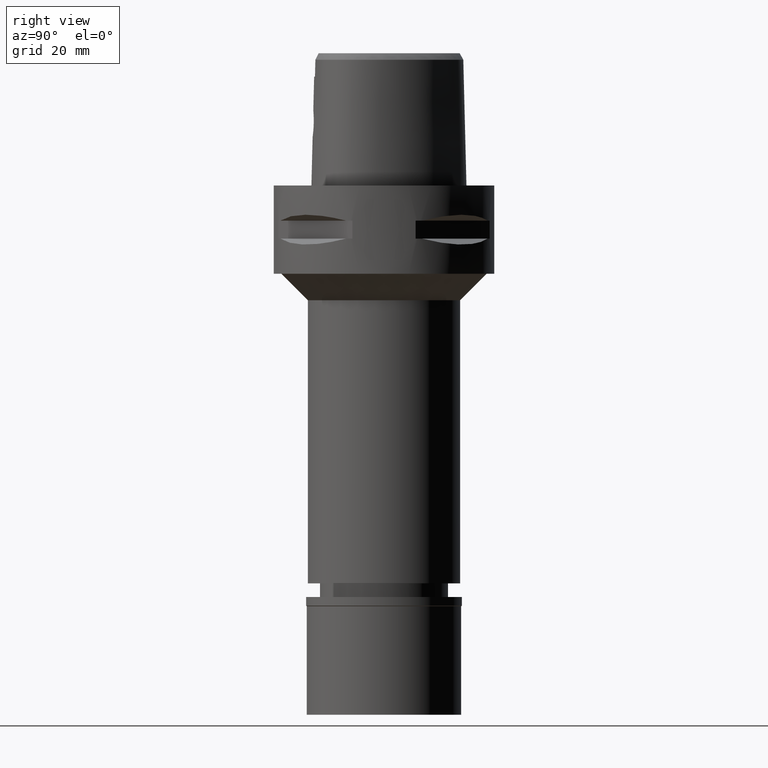
[diagram: clean part render]
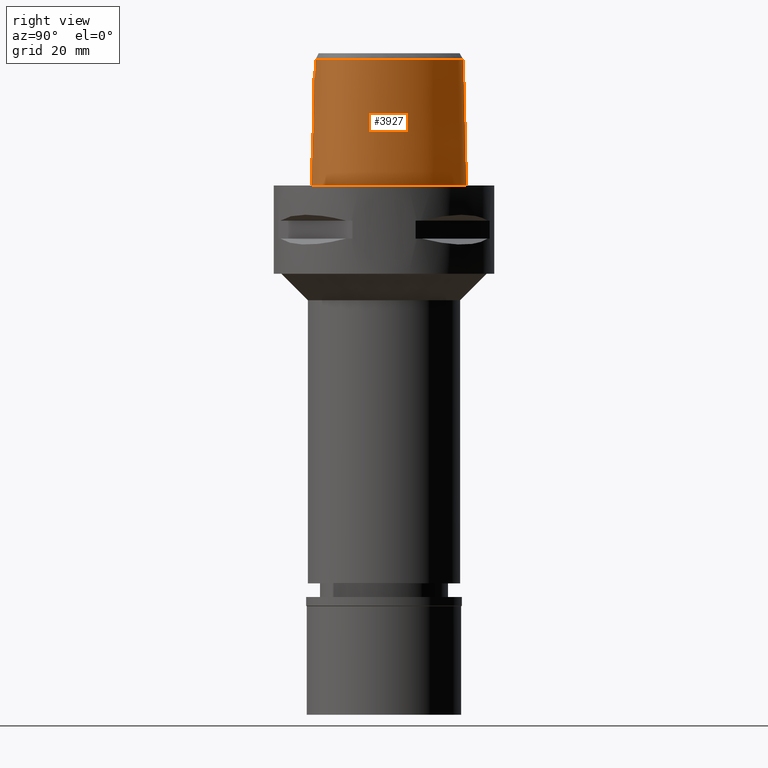
[diagram: same view with one face highlighted and labeled with its STEP entity id]
A machine part, right view. The second image highlights one B-rep face of the part: STEP entity #3927.
In plain terms, the highlighted face is a freeform B-spline surface patch.
Its self-contained STEP definition (entity closure, byte-faithful):
#18 = CARTESIAN_POINT ( 'NONE',  ( -0.7074880756459999143, -15.72098129769000252, 29.09114224101000090 ) ) ;
#42 = CARTESIAN_POINT ( 'NONE',  ( 14.43869636284999913, -10.95090983641999927, 19.20395664275999792 ) ) ;
#46 = CARTESIAN_POINT ( 'NONE',  ( 1.616099766049515107, -15.99381337938741687, 16.58846643699799372 ) ) ;
#68 = CARTESIAN_POINT ( 'NONE',  ( -1.060560766305000069, -15.70738106649000088, 29.09114224101000090 ) ) ;
#114 = CARTESIAN_POINT ( 'NONE',  ( 8.697311596821000634, -14.35163132027000010, 29.09114224101000090 ) ) ;
#140 = CARTESIAN_POINT ( 'NONE',  ( 0.4511781848393000005, 17.98656562787999746, 29.09114224101000090 ) ) ;
#165 = CARTESIAN_POINT ( 'NONE',  ( 16.77753632395000238, -0.3562822714384000222, 29.09114224101000090 ) ) ;
#186 = CARTESIAN_POINT ( 'NONE',  ( 17.49754712307382931, -0.2285937499999897982, 2.976406014015831047E-13 ) ) ;
#188 = CARTESIAN_POINT ( 'NONE',  ( 13.96223233991999990, 8.061115454384999879, 19.20395664275999792 ) ) ;
#193 = EDGE_CURVE ( 'NONE', #4291, #1532, #2701, .T. ) ;
#198 = CARTESIAN_POINT ( 'NONE',  ( 2.030224829794000080E-07, -15.83752876601000281, 24.70000006102999990 ) ) ;
#213 = CARTESIAN_POINT ( 'NONE',  ( 17.57791639359999891, -5.458025465394999998, -0.5704145537452999237 ) ) ;
#222 = CARTESIAN_POINT ( 'NONE',  ( 2.130834279645533513, -16.07853149005606852, 11.81777582520600767 ) ) ;
#227 = CARTESIAN_POINT ( 'NONE',  ( 3.235096591086000117, -15.64751801257999908, 24.70000006080999810 ) ) ;
#235 = CARTESIAN_POINT ( 'NONE',  ( 17.26695542924000293, -0.2694874594802000312, 9.316771044506999999 ) ) ;
#240 = CARTESIAN_POINT ( 'NONE',  ( 2.806282367902104724, -15.99380854387472795, 12.80500890572250761 ) ) ;
#252 = CARTESIAN_POINT ( 'NONE',  ( 16.20602471963941582, -9.356552734375247482, 2.976406014015831047E-13 ) ) ;
#264 = CARTESIAN_POINT ( 'NONE',  ( 2.775961287962938062, -15.99857004330711163, 12.73620107527709067 ) ) ;
#266 = CARTESIAN_POINT ( 'NONE',  ( 14.26907046692650383, -10.79012245165822392, 28.52071728562183495 ) ) ;
#285 = EDGE_CURVE ( 'NONE', #2621, #373, #2567, .T. ) ;
#295 = CARTESIAN_POINT ( 'NONE',  ( 2.975249651912823090, -15.92914271478721311, 14.67846616982686747 ) ) ;
#316 = CARTESIAN_POINT ( 'NONE',  ( 1.158353828547291409, -16.15167258786864934, 11.17852165137630926 ) ) ;
#362 = CARTESIAN_POINT ( 'NONE',  ( 1.262794661676007069, -16.00712763199255662, 16.77676499123156972 ) ) ;
#373 = VERTEX_POINT ( 'NONE', #2668 ) ;
#386 = CARTESIAN_POINT ( 'NONE',  ( 1.898958778535287273, -15.98067541706731731, 16.38724889510308103 ) ) ;
#406 = CARTESIAN_POINT ( 'NONE',  ( 13.05575617540000088, -11.90823727885000061, 29.09114224101000090 ) ) ;
#426 = CARTESIAN_POINT ( 'NONE',  ( 15.66039569071000059, -10.22138777218999905, -0.5704145537452999237 ) ) ;
#468 = CARTESIAN_POINT ( 'NONE',  ( -0.7138086240093000079, -15.96808641723999855, 19.20395664275999792 ) ) ;
#470 = CARTESIAN_POINT ( 'NONE',  ( 5.051093167571859333, -16.15562499999758828, 2.976406014015831552E-13 ) ) ;
#489 = CARTESIAN_POINT ( 'NONE',  ( 11.47659488228999969, 12.46143684616999892, -0.5704145537452999237 ) ) ;
#490 = CARTESIAN_POINT ( 'NONE',  ( 2.196663950529426312, -15.96564993910013364, 16.11602529263611316 ) ) ;
#516 = CARTESIAN_POINT ( 'NONE',  ( 4.735056263091999895, 17.74784407602999892, -0.5704145537452999237 ) ) ;
#534 = CARTESIAN_POINT ( 'NONE',  ( -1.980591514487999971E-12, -16.18126839358999902, 10.94999999999999929 ) ) ;
#536 = CARTESIAN_POINT ( 'NONE',  ( -0.5293535204074000244, 17.95181588734000044, 29.09114224101000090 ) ) ;
#551 = CARTESIAN_POINT ( 'NONE',  ( 0.6801907859383073962, 18.69499999999166207, 2.976406014015831047E-13 ) ) ;
#552 = CARTESIAN_POINT ( 'NONE',  ( 7.514850770969000671, 15.25369635418000058, 29.09114224101000090 ) ) ;
#560 = CARTESIAN_POINT ( 'NONE',  ( 2.957688824804170835, -15.96752846870872666, 13.22897551199208621 ) ) ;
#578 = CARTESIAN_POINT ( 'NONE',  ( 16.29641061717000028, 3.623925473446000023, 9.316771044506999999 ) ) ;
#606 = CARTESIAN_POINT ( 'NONE',  ( 16.66912842139923612, -8.445800781249845457, 2.976406014015831047E-13 ) ) ;
#614 = CARTESIAN_POINT ( 'NONE',  ( 1.805376232587398988, -16.10834772480010813, 11.53923680359978476 ) ) ;
#615 = CARTESIAN_POINT ( 'NONE',  ( 3.738627708319180787, -15.49270856215351877, 28.52071728562183495 ) ) ;
#626 = CARTESIAN_POINT ( 'NONE',  ( 11.68694516583923004, -13.70394531249594472, 2.976406014015831047E-13 ) ) ;
#641 = CARTESIAN_POINT ( 'NONE',  ( 2.520317714005605669, -15.94834054842959503, 15.72060082174885132 ) ) ;
#673 = ORIENTED_EDGE ( 'NONE', *, *, #4722, .F. ) ;
#688 = CARTESIAN_POINT ( 'NONE',  ( 2.180887052763814449, -15.96648089881372279, 16.13220278528723028 ) ) ;
#710 = CARTESIAN_POINT ( 'NONE',  ( 16.01658383235691474, -8.155509186611954675, 28.52071728562183495 ) ) ;
#732 = CARTESIAN_POINT ( 'NONE',  ( 1.859549321997236992, -15.98255794229956273, 16.41807320997656205 ) ) ;
#756 = LINE ( 'NONE', #2994, #4116 ) ;
#799 = CARTESIAN_POINT ( 'NONE',  ( 14.61870771869000052, -11.12154153728999972, 9.316771044506999999 ) ) ;
#846 = CARTESIAN_POINT ( 'NONE',  ( 14.39249254908999909, 8.309508946899001103, -0.5704145537452999237 ) ) ;
#847 = CARTESIAN_POINT ( 'NONE',  ( 2.088968113521980197, -15.97131126311716542, 16.22457167555463542 ) ) ;
#870 = CARTESIAN_POINT ( 'NONE',  ( 16.53021708233000098, 3.708305583258000304, -0.5704145537452999237 ) ) ;
#898 = CARTESIAN_POINT ( 'NONE',  ( -0.5443412263036000454, 18.19851716980000234, 19.20395664275999792 ) ) ;
#921 = CARTESIAN_POINT ( 'NONE',  ( 14.78833380400076791, -11.28232910156190805, 2.976406014015831047E-13 ) ) ;
#923 = CARTESIAN_POINT ( 'NONE',  ( 16.00353269782999988, -8.149703246730998885, 29.09114224101000090 ) ) ;
#945 = CARTESIAN_POINT ( 'NONE',  ( 2.040572357695998207, 18.55015624999122537, 2.976406014015831047E-13 ) ) ;
#946 = CARTESIAN_POINT ( 'NONE',  ( 1.941729224352999994, 18.07741846689000198, 19.20395664275999792 ) ) ;
#955 = CARTESIAN_POINT ( 'NONE',  ( 2.044225401073505033, -16.08701963945086533, 11.73626748625702554 ) ) ;
#981 = CARTESIAN_POINT ( 'NONE',  ( 6.766065355937999521E-11, 18.69499999997999851, 1.597610932435999867E-13 ) ) ;
#985 = CARTESIAN_POINT ( 'NONE',  ( 2.899217746531572271, -15.97873758491097718, 13.02871175161756589 ) ) ;
#988 = CARTESIAN_POINT ( 'NONE',  ( 10.91764517732974760, 11.98972036053649326, 28.52071728562183495 ) ) ;
#1011 = CARTESIAN_POINT ( 'NONE',  ( 2.824468722466922266, -15.93300016794371743, 15.15105085638172611 ) ) ;
#1026 = CARTESIAN_POINT ( 'NONE',  ( 0.0000000000000000000, -16.02877864023999877, 17.05000000000000071 ) ) ;
#1033 = CARTESIAN_POINT ( 'NONE',  ( 2.076784380858856416, -16.08390063340872800, 11.76594178764125331 ) ) ;
#1040 = B_SPLINE_CURVE_WITH_KNOTS ( 'NONE', 3,
 ( #2812, #3300, #2919, #1026 ),
 .UNSPECIFIED., .F., .F.,
 ( 4, 4 ),
 ( 0.0000000000000000000, 1.000000000000000000 ),
 .UNSPECIFIED. ) ;
#1046 = EDGE_CURVE ( 'NONE', #2384, #4681, #1040, .T. ) ;
#1105 = CARTESIAN_POINT ( 'NONE',  ( 2.164021906619612245, -15.96736812113674553, 16.14931344321803053 ) ) ;
#1129 = CARTESIAN_POINT ( 'NONE',  ( 13.36241666544999873, -12.29868536626999997, 9.316771044506999999 ) ) ;
#1155 = CARTESIAN_POINT ( 'NONE',  ( 15.46013592276000104, -10.07579659592999910, 9.316771044506999999 ) ) ;
#1161 = CARTESIAN_POINT ( 'NONE',  ( 2.262444582314412145, -15.96216938760132109, 16.04565077979858501 ) ) ;
#1182 = CARTESIAN_POINT ( 'NONE',  ( 11.32630903919999987, -13.06981832988000036, 29.09114224101000090 ) ) ;
#1206 = CARTESIAN_POINT ( 'NONE',  ( -1.079551363802000008, -16.20136649919999883, 9.316771044506999999 ) ) ;
#1248 = CARTESIAN_POINT ( 'NONE',  ( -0.3730031670128999832, 18.45651550164999932, 9.316771044506999999 ) ) ;
#1267 = CARTESIAN_POINT ( 'NONE',  ( -0.5593289321996999242, 18.44521845224999623, 9.316771044506999999 ) ) ;
#1284 = CARTESIAN_POINT ( 'NONE',  ( 11.46563508023480082, 12.45218750000693042, 2.976406014015831047E-13 ) ) ;
#1286 = CARTESIAN_POINT ( 'NONE',  ( 15.82879768682999710, 3.455165253819999727, 29.09114224101000090 ) ) ;
#1312 = CARTESIAN_POINT ( 'NONE',  ( 11.28662497999999914, 12.30111484600999994, 9.316771044506999999 ) ) ;
#1318 = CARTESIAN_POINT ( 'NONE',  ( 3.050149896193000920, -15.93316336324772386, 14.18941404704232490 ) ) ;
#1334 = CARTESIAN_POINT ( 'NONE',  ( 1.890839690368999904, 17.83402871717000338, 29.09114224101000090 ) ) ;
#1345 = CARTESIAN_POINT ( 'NONE',  ( 15.07117004567137108, -9.793013887526525352, 28.52071728562183495 ) ) ;
#1374 = CARTESIAN_POINT ( 'NONE',  ( 2.836520581861567081, -15.93251973351802242, 15.12113420123080942 ) ) ;
#1380 = CARTESIAN_POINT ( 'NONE',  ( 2.169052010910823558, -15.77399788591334051, 24.70000016056455294 ) ) ;
#1401 = CARTESIAN_POINT ( 'NONE',  ( 0.6770584128771647281, -16.17132556088388640, 11.02443681068310255 ) ) ;
#1423 = CARTESIAN_POINT ( 'NONE',  ( 1.306758668661504474, -16.14399373876849353, 11.23972581488373912 ) ) ;
#1429 = ORIENTED_EDGE ( 'NONE', *, *, #285, .T. ) ;
#1455 = VERTEX_POINT ( 'NONE', #4601 ) ;
#1502 = CARTESIAN_POINT ( 'NONE',  ( 2.459696765391574669, -15.95161770387217359, 15.80683248070965163 ) ) ;
#1532 = VERTEX_POINT ( 'NONE', #981 ) ;
#1576 = CARTESIAN_POINT ( 'NONE',  ( 16.21839714480000083, -9.363695957393000313, -0.5704145537452999237 ) ) ;
#1585 = CARTESIAN_POINT ( 'NONE',  ( 3.168920890822999770, -15.55911073834000113, 28.52071374672999582 ) ) ;
#1601 = CARTESIAN_POINT ( 'NONE',  ( 11.69401646243999870, -13.71637917490000014, -0.5704145537452999237 ) ) ;
#1626 = CARTESIAN_POINT ( 'NONE',  ( 17.22987942513000093, -3.272349402643000005, 19.20395664275999792 ) ) ;
#1628 = CARTESIAN_POINT ( 'NONE',  ( 2.356615372638850570, -15.95714923954085585, 15.93698914121854671 ) ) ;
#1645 = CARTESIAN_POINT ( 'NONE',  ( 0.4897519511870999653, 18.72964555253000185, -0.5704145537452999237 ) ) ;
#1666 = CARTESIAN_POINT ( 'NONE',  ( 0.4640361069551999784, 18.23425893609999804, 19.20395664275999792 ) ) ;
#1675 = CARTESIAN_POINT ( 'NONE',  ( 3.235096591086000117, -15.64751801257999908, 24.70000006080999810 ) ) ;
#1693 = CARTESIAN_POINT ( 'NONE',  ( 16.94089135336999874, -7.099401475686000218, 9.316771044506999999 ) ) ;
#1704 = CARTESIAN_POINT ( 'NONE',  ( 1.719191830015897482, -16.11523926597523371, 11.47872671523163746 ) ) ;
#1719 = CARTESIAN_POINT ( 'NONE',  ( 7.668807780442000066, 15.44980323052999971, 19.20395664275999792 ) ) ;
#1726 = CARTESIAN_POINT ( 'NONE',  ( 1.078575942914882235, -16.15565394761469520, 11.14687127074763495 ) ) ;
#1730 = LINE ( 'NONE', #4408, #3338 ) ;
#1737 = CARTESIAN_POINT ( 'NONE',  ( 17.71143735561479104, -3.269218750000424389, 2.976406014015831047E-13 ) ) ;
#1749 = CARTESIAN_POINT ( 'NONE',  ( 3.027798455715707604, -15.95003164277662755, 13.62032956274717321 ) ) ;
#1754 = CARTESIAN_POINT ( 'NONE',  ( -3.151827129214000572E-11, 17.98202997909999823, 28.52071728569000086 ) ) ;
#1773 = CARTESIAN_POINT ( 'NONE',  ( 2.821425036078518467, -15.93312409536605578, 15.15848376097718031 ) ) ;
#1853 = CARTESIAN_POINT ( 'NONE',  ( 15.84228676733109076, 3.460033425849080135, 28.52071728562183495 ) ) ;
#1870 = CARTESIAN_POINT ( 'NONE',  ( 1.286803370084999898, -15.75925600328000087, 29.09114224101000090 ) ) ;
#1875 = B_SPLINE_CURVE_WITH_KNOTS ( 'NONE', 3,
 ( #2114, #4331, #4354, #1401, #4698, #3674, #4793, #1726, #3601, #4047, #2164, #316, #1423, #3204, #1704, #614, #2927, #2432, #955, #1033, #2457, #222, #3624, #2532, #4399, #2899, #3306, #3944, #3969, #3999, #3284, #2092, #264, #2064, #240, #985, #560, #4775, #1749, #3254, #3651, #3575, #4745, #1318, #2840, #295, #3227, #2139, #4719, #2485, #1374, #4378, #1011, #1773, #2508, #4022, #641, #1502, #1628, #2256, #1161, #4820, #490, #688, #3696, #1105, #847, #2207, #386, #732, #2973, #4840, #46, #3329, #2353, #3497, #362, #3719, #2664, #3864, #1989 ),
 .UNSPECIFIED., .F., .F.,
 ( 4, 2, 2, 1, 1, 1, 2, 2, 2, 2, 2, 1, 1, 2, 2, 2, 2, 2, 1, 2, 2, 2, 2, 2, 2, 2, 2, 1, 1, 1, 2, 2, 2, 2, 2, 1, 1, 2, 2, 2, 2, 2, 2, 2, 2, 4 ),
 ( 0.0000000000000000000, 0.06250000000000194289, 0.09375000000000292821, 0.1093750000000034278, 0.1171875000000035943, 0.1210937500000035666, 0.1230468750000035943, 0.1250000000000036082, 0.1874999999999998612, 0.2187499999999979738, 0.2343749999999970024, 0.2421874999999965306, 0.2460937499999961142, 0.2480468749999960587, 0.2499999999999960032, 0.2812499999999952816, 0.3124999999999946154, 0.3437499999999938938, 0.3593749999999935607, 0.3671874999999931721, 0.3749999999999927280, 0.4374999999999883982, 0.4687499999999862332, 0.4843749999999854561, 0.4999999999999846789, 0.5624999999999807931, 0.5937499999999786837, 0.6093749999999779066, 0.6171874999999776845, 0.6210937499999773515, 0.6230468749999771294, 0.6249999999999770184, 0.6874999999999783507, 0.7187499999999789058, 0.7343749999999792388, 0.7421874999999797939, 0.7460937499999801270, 0.7480468749999799050, 0.7499999999999797939, 0.7812499999999830136, 0.7968749999999842348, 0.8124999999999854561, 0.8437499999999878986, 0.8593749999999890088, 0.8749999999999900080, 1.000000000000000000 ),
 .UNSPECIFIED. ) ;
#1899 = ORIENTED_EDGE ( 'NONE', *, *, #1046, .T. ) ;
#1942 = CARTESIAN_POINT ( 'NONE',  ( 15.05961638684000015, -9.784614243422000257, 29.09114224101000090 ) ) ;
#1948 = ORIENTED_EDGE ( 'NONE', *, *, #4419, .F. ) ;
#1986 = CARTESIAN_POINT ( 'NONE',  ( 0.4768940290711999874, 18.48195224430999772, 9.316771044506999999 ) ) ;
#1989 = CARTESIAN_POINT ( 'NONE',  ( 0.0000000000000000000, -16.02877864023999877, 17.05000000000000071 ) ) ;
#2016 = CARTESIAN_POINT ( 'NONE',  ( -0.3630721127881000321, 18.20950151435999942, 19.20395664275999792 ) ) ;
#2037 = CARTESIAN_POINT ( 'NONE',  ( 4.522582312180000841, 17.29581194002000188, 19.20395664275999792 ) ) ;
#2058 = CARTESIAN_POINT ( 'NONE',  ( 16.45596377789999920, -8.350972159083999813, 9.316771044506999999 ) ) ;
#2064 = CARTESIAN_POINT ( 'NONE',  ( 2.796681338616600065, -15.99533385695102794, 12.78273984513034556 ) ) ;
#2078 = CARTESIAN_POINT ( 'NONE',  ( 17.16495051780344738, -7.165908203125519016, 2.976406014015831047E-13 ) ) ;
#2080 = CARTESIAN_POINT ( 'NONE',  ( 16.06260415200000224, 3.539545363633000097, 19.20395664275999792 ) ) ;
#2092 = CARTESIAN_POINT ( 'NONE',  ( 2.744096643845213457, -16.00346064512505251, 12.66698413764603437 ) ) ;
#2114 = CARTESIAN_POINT ( 'NONE',  ( -1.980591514487999971E-12, -16.18126839358999902, 10.94999999999999929 ) ) ;
#2139 = CARTESIAN_POINT ( 'NONE',  ( 2.907704111751938214, -15.93016185020670861, 14.92213459652817953 ) ) ;
#2164 = CARTESIAN_POINT ( 'NONE',  ( 1.150837130458068236, -16.15205889506641412, 11.17544410961278167 ) ) ;
#2165 = CARTESIAN_POINT ( 'NONE',  ( 16.99625257116710486, -3.273868232426887737, 28.52071728562183495 ) ) ;
#2183 = CARTESIAN_POINT ( 'NONE',  ( 0.6295828025425412866, 17.98202997637433853, 28.52071728562183495 ) ) ;
#2189 = DIRECTION ( 'NONE',  ( 3.476348407583890043E-12, 0.02499051285796925065, -0.9996876883642689116 ) ) ;
#2207 = CARTESIAN_POINT ( 'NONE',  ( 2.014841840659067795, -15.97504399877426984, 16.29192479722134124 ) ) ;
#2251 = CARTESIAN_POINT ( 'NONE',  ( 8.866858758741999580, -14.81887824963000000, 9.316771044506999999 ) ) ;
#2256 = CARTESIAN_POINT ( 'NONE',  ( 2.320231428406521523, -15.95909571851455944, 15.98050410814317779 ) ) ;
#2276 = CARTESIAN_POINT ( 'NONE',  ( 1.309813754532999974, -16.25411922947999699, 9.316771044506999999 ) ) ;
#2301 = CARTESIAN_POINT ( 'NONE',  ( 15.25987615480000059, -9.930205419677999856, 19.20395664275999792 ) ) ;
#2352 = CARTESIAN_POINT ( 'NONE',  ( 17.33218234625000065, -5.422849690209000428, 9.316771044506999999 ) ) ;
#2353 = CARTESIAN_POINT ( 'NONE',  ( 1.399412083726095712, -16.00233608542868069, 16.71046994217811843 ) ) ;
#2378 = CARTESIAN_POINT ( 'NONE',  ( 4.628819287636000368, 17.52182800802999907, 9.316771044506999999 ) ) ;
#2382 = EDGE_CURVE ( 'NONE', #1455, #2384, #3569, .T. ) ;
#2384 = VERTEX_POINT ( 'NONE', #198 ) ;
#2413 = CARTESIAN_POINT ( 'NONE',  ( 0.0000000000000000000, -16.02877864023999877, 17.05000000000000071 ) ) ;
#2426 = CARTESIAN_POINT ( 'NONE',  ( 17.08644829889999883, -5.387673915021999882, 19.20395664275999792 ) ) ;
#2432 = CARTESIAN_POINT ( 'NONE',  ( 1.979050802157150679, -16.09313883417927116, 11.67852903116020791 ) ) ;
#2446 = CARTESIAN_POINT ( 'NONE',  ( 16.68217931793999753, -8.451606615260001121, -0.5704145537452999237 ) ) ;
#2457 = CARTESIAN_POINT ( 'NONE',  ( 2.114644142901450863, -16.08015782783983028, 11.80200641014713447 ) ) ;
#2485 = CARTESIAN_POINT ( 'NONE',  ( 2.852909278454515807, -15.93189406616820847, 15.07915126970514130 ) ) ;
#2496 = CARTESIAN_POINT ( 'NONE',  ( 14.38008119690267428, 8.302343749999554490, 2.976406014015831047E-13 ) ) ;
#2508 = CARTESIAN_POINT ( 'NONE',  ( 2.759961640973259467, -15.93564958624567929, 15.30749493561488705 ) ) ;
#2512 = CARTESIAN_POINT ( 'NONE',  ( 1.084489111476924394, -15.83754148653837923, 24.70000016056455294 ) ) ;
#2532 = CARTESIAN_POINT ( 'NONE',  ( 2.147962331140050196, -16.07679769526337665, 11.83463701146478542 ) ) ;
#2567 = B_SPLINE_CURVE_WITH_KNOTS ( 'NONE', 3,
 ( #3255, #2183, #3308, #2585, #4821, #988, #4024, #1853, #4048, #2165, #3330, #2900, #710, #4776, #1345, #266, #3626, #2873, #4357, #4000, #615, #4453 ),
 .UNSPECIFIED., .F., .F.,
 ( 4, 1, 1, 1, 1, 1, 1, 1, 1, 1, 1, 1, 1, 1, 1, 1, 1, 1, 1, 4 ),
 ( 0.0000000000000000000, 0.04404152929333968181, 0.08808305858551654377, 0.1761661171698704897, 0.2642491757542244635, 0.3523322343385784094, 0.4404152929230379931, 0.5284983515073918836, 0.5725398807995688566, 0.6165814100917457186, 0.6606229393839229136, 0.6826437040300112891, 0.7046644686762054688, 0.7266852333222939553, 0.7487059979682767485, 0.7927475272605594148, 0.8367890565527363878, 0.8808305858449132497, 0.9689136444292882899, 1.000000000000000000 ),
 .UNSPECIFIED. ) ;
#2585 = CARTESIAN_POINT ( 'NONE',  ( 4.422474504766027437, 17.08283549833477721, 28.52071728562183495 ) ) ;
#2621 = VERTEX_POINT ( 'NONE', #1754 ) ;
#2632 = FACE_OUTER_BOUND ( 'NONE', #4771, .T. ) ;
#2664 = CARTESIAN_POINT ( 'NONE',  ( 0.7741482008192018816, -16.02257322970521258, 16.98085959781949583 ) ) ;
#2668 = CARTESIAN_POINT ( 'NONE',  ( 3.168920890822999770, -15.55911073834000113, 28.52071374672999582 ) ) ;
#2701 = B_SPLINE_CURVE_WITH_KNOTS ( 'NONE', 3,
 ( #3846, #4368, #470, #2858, #626, #3935, #921, #4732, #252, #606, #2078, #3588, #1737, #186, #3167, #2496, #1284, #4664, #2808, #945, #551, #3564 ),
 .UNSPECIFIED., .F., .F.,
 ( 4, 1, 1, 1, 1, 1, 1, 1, 1, 1, 1, 1, 1, 1, 1, 1, 1, 1, 1, 4 ),
 ( 0.0000000000000000000, 0.08333333333348000305, 0.1666666666667000196, 0.2083333333333000081, 0.2499999999998999967, 0.2916666666666000163, 0.3124999999997999933, 0.3333333333331000015, 0.3541666666665000407, 0.3749999999997999933, 0.4166666666664000096, 0.4583333333330000259, 0.4999999999995999866, 0.5833333333328000192, 0.6666666666660999718, 0.7499999999993000044, 0.8333333333325000369, 0.9166666666657000695, 0.9583333333322999747, 1.000000000000000000 ),
 .UNSPECIFIED. ) ;
#2714 = CARTESIAN_POINT ( 'NONE',  ( 1.298308562308999825, -16.00668761638000248, 19.20395664275999792 ) ) ;
#2766 = CARTESIAN_POINT ( 'NONE',  ( 16.46533720843999760, -6.958244339896999975, 29.09114224101000090 ) ) ;
#2786 = ORIENTED_EDGE ( 'NONE', *, *, #4817, .T. ) ;
#2790 = CARTESIAN_POINT ( 'NONE',  ( 17.51166498187999920, -0.2260900535011999835, -0.5704145537452999237 ) ) ;
#2808 = CARTESIAN_POINT ( 'NONE',  ( 4.728927206815690454, 17.73480468749152195, 2.976406014015831047E-13 ) ) ;
#2812 = CARTESIAN_POINT ( 'NONE',  ( 2.030224829794000080E-07, -15.83752876601000281, 24.70000006102999990 ) ) ;
#2832 = CARTESIAN_POINT ( 'NONE',  ( 1.992618758335999773, 18.32080821661000058, 9.316771044506999999 ) ) ;
#2840 = CARTESIAN_POINT ( 'NONE',  ( 3.032153927794988935, -15.93034332000362419, 14.38503233290865779 ) ) ;
#2858 = CARTESIAN_POINT ( 'NONE',  ( 8.946741556185072497, -15.03902343750153392, 2.976406014015831047E-13 ) ) ;
#2860 = CARTESIAN_POINT ( 'NONE',  ( 16.70311428089999950, -7.028822907791999697, 19.20395664275999792 ) ) ;
#2873 = CARTESIAN_POINT ( 'NONE',  ( 11.33338046474752048, -13.08225241901844171, 28.52071728562183495 ) ) ;
#2899 = CARTESIAN_POINT ( 'NONE',  ( 2.290593162243965253, -16.06186194956453761, 11.98364703425936995 ) ) ;
#2900 = CARTESIAN_POINT ( 'NONE',  ( 16.47905536661581394, -6.962316254603443610, 28.52071728562183495 ) ) ;
#2903 = CARTESIAN_POINT ( 'NONE',  ( 2.030224829794000080E-07, -15.83752876601000281, 24.70000006102999990 ) ) ;
#2919 = CARTESIAN_POINT ( 'NONE',  ( 6.797954737203250260E-08, -15.96503292052209666, 19.60000012629505406 ) ) ;
#2927 = CARTESIAN_POINT ( 'NONE',  ( 1.935527014327863338, -16.09705987419036077, 11.64218429700402879 ) ) ;
#2973 = CARTESIAN_POINT ( 'NONE',  ( 1.779262221764184915, -15.98633376436652753, 16.47774649146144910 ) ) ;
#2994 = CARTESIAN_POINT ( 'NONE',  ( -1.980591514487999971E-12, -16.18126839358999902, 10.94999999999999929 ) ) ;
#3013 = CARTESIAN_POINT ( 'NONE',  ( 4.965998120607999056, -15.68039706379999920, 19.20395664275999792 ) ) ;
#3039 = CARTESIAN_POINT ( 'NONE',  ( 5.009809431916999678, -15.92506887253999892, 9.316771044506999999 ) ) ;
#3054 = ORIENTED_EDGE ( 'NONE', *, *, #193, .T. ) ;
#3104 = CARTESIAN_POINT ( 'NONE',  ( 1.321318946756999901, -16.50155084257999860, -0.5704145537452999237 ) ) ;
#3113 = VERTEX_POINT ( 'NONE', #534 ) ;
#3126 = CARTESIAN_POINT ( 'NONE',  ( -0.3829342212378000210, 18.70352948894000278, -0.5704145537452999237 ) ) ;
#3144 = CARTESIAN_POINT ( 'NONE',  ( 10.90668517541999982, 11.98047084571000021, 29.09114224101000090 ) ) ;
#3167 = CARTESIAN_POINT ( 'NONE',  ( 16.51672824780152382, 3.703437499999612470, 2.976406014015831047E-13 ) ) ;
#3196 = CARTESIAN_POINT ( 'NONE',  ( 16.98194860942999895, -3.273961223805000209, 29.09114224101000090 ) ) ;
#3198 = B_SPLINE_SURFACE_WITH_KNOTS ( 'NONE', 3, 3, ( 
 ( #3843, #1206, #3423, #68 ),
 ( #4181, #4156, #468, #18 ),
 ( #3104, #2276, #2714, #1870 ),
 ( #4233, #3039, #3013, #3797 ),
 ( #3448, #2251, #3471, #114 ),
 ( #1601, #3372, #4594, #1182 ),
 ( #4497, #1129, #3769, #406 ),
 ( #3397, #799, #42, #4525 ),
 ( #426, #1155, #2301, #1942 ),
 ( #1576, #3888, #4299, #4712 ),
 ( #2446, #2058, #3566, #923 ),
 ( #3960, #1693, #2860, #2766 ),
 ( #213, #2352, #2426, #4320 ),
 ( #3863, #3496, #1626, #3196 ),
 ( #2790, #235, #4253, #165 ),
 ( #870, #578, #2080, #1286 ),
 ( #846, #4688, #188, #4274 ),
 ( #489, #1312, #3590, #3144 ),
 ( #3937, #4617, #1719, #552 ),
 ( #516, #2378, #2037, #3219 ),
 ( #3543, #2832, #946, #1334 ),
 ( #1645, #1986, #1666, #140 ),
 ( #3126, #1248, #2016, #3525 ),
 ( #4640, #1267, #898, #536 ) ),
 .UNSPECIFIED., .F., .F., .F.,
 ( 4, 1, 1, 1, 1, 1, 1, 1, 1, 1, 1, 1, 1, 1, 1, 1, 1, 1, 1, 1, 1, 4 ),
 ( 4, 4 ),
 ( -0.01796851319148000045, 0.0000000000000000000, 0.08333333333348000305, 0.1666666666667000196, 0.2083333333333000081, 0.2499999999998999967, 0.2916666666666000163, 0.3124999999997999933, 0.3333333333331000015, 0.3541666666665000407, 0.3749999999997999933, 0.4166666666664000096, 0.4583333333330000259, 0.4999999999995999866, 0.5833333333328000192, 0.6666666666660999718, 0.7499999999993000044, 0.8333333333325000369, 0.9166666666657000695, 0.9583333333322999747, 1.000000000000000000, 1.011711214084999977 ),
 ( 5.952388724278999976E-09, 0.9999996964281000489 ),
 .UNSPECIFIED. ) ;
#3204 = CARTESIAN_POINT ( 'NONE',  ( 1.466707760578711994, -16.13401281180648539, 11.31839107165521874 ) ) ;
#3219 = CARTESIAN_POINT ( 'NONE',  ( 4.416345336724999626, 17.06979587201999848, 29.09114224101000090 ) ) ;
#3227 = CARTESIAN_POINT ( 'NONE',  ( 2.951306861662620573, -15.92924742299003960, 14.77626636585412001 ) ) ;
#3254 = CARTESIAN_POINT ( 'NONE',  ( 3.041209740384549942, -15.94490574327321930, 13.76368115324908281 ) ) ;
#3255 = CARTESIAN_POINT ( 'NONE',  ( -3.151827129214000572E-11, 17.98202997909999823, 28.52071728569000086 ) ) ;
#3284 = CARTESIAN_POINT ( 'NONE',  ( 2.709953204667775672, -16.00846021379442519, 12.59958595632848422 ) ) ;
#3300 = CARTESIAN_POINT ( 'NONE',  ( 6.782431960879900640E-08, -15.90128720080269353, 22.15000025259005412 ) ) ;
#3306 = CARTESIAN_POINT ( 'NONE',  ( 2.417729193041619595, -16.04731727844055911, 12.13798983179893654 ) ) ;
#3308 = CARTESIAN_POINT ( 'NONE',  ( 1.893775678555069009, 17.84807068955529274, 28.52071728562183495 ) ) ;
#3329 = CARTESIAN_POINT ( 'NONE',  ( 1.531589067142498539, -15.99732691922906369, 16.63945844436470267 ) ) ;
#3330 = CARTESIAN_POINT ( 'NONE',  ( 16.85489147434045520, -5.354527548487413746, 28.52071728562183495 ) ) ;
#3338 = VECTOR ( 'NONE', #2189, 1000.000000000000227 ) ;
#3372 = CARTESIAN_POINT ( 'NONE',  ( 11.57144732136000087, -13.50085889322999932, 9.316771044506999999 ) ) ;
#3397 = CARTESIAN_POINT ( 'NONE',  ( 14.79871907453000013, -11.29217323815000107, -0.5704145537452999237 ) ) ;
#3423 = CARTESIAN_POINT ( 'NONE',  ( -1.070056065053999861, -15.95437378285000030, 19.20395664275999792 ) ) ;
#3448 = CARTESIAN_POINT ( 'NONE',  ( 8.951632339701999896, -15.05250171430999906, -0.5704145537452999237 ) ) ;
#3457 = CARTESIAN_POINT ( 'NONE',  ( 3.213444788215948034, -15.61774735051721308, 25.97357128944999971 ) ) ;
#3471 = CARTESIAN_POINT ( 'NONE',  ( 8.782085177781000951, -14.58525478494999916, 19.20395664275999792 ) ) ;
#3496 = CARTESIAN_POINT ( 'NONE',  ( 17.47781024082999934, -3.270737581480000156, 9.316771044506999999 ) ) ;
#3497 = CARTESIAN_POINT ( 'NONE',  ( 1.354452607727719693, -16.00396228356807171, 16.73322745257438626 ) ) ;
#3525 = CARTESIAN_POINT ( 'NONE',  ( -0.3531410585631999943, 17.96248752707000307, 29.09114224101000090 ) ) ;
#3532 = CARTESIAN_POINT ( 'NONE',  ( 3.191384142201736829, -15.58827398948734633, 27.24714251809000132 ) ) ;
#3543 = CARTESIAN_POINT ( 'NONE',  ( 2.043508292320000308, 18.56419796632999919, -0.5704145537452999237 ) ) ;
#3564 = CARTESIAN_POINT ( 'NONE',  ( 6.766065355937999521E-11, 18.69499999997999851, 1.597610932435999867E-13 ) ) ;
#3566 = CARTESIAN_POINT ( 'NONE',  ( 16.22974823787000176, -8.250337702908000281, 19.20395664275999792 ) ) ;
#3569 = B_SPLINE_CURVE_WITH_KNOTS ( 'NONE', 3,
 ( #227, #1380, #2512, #2903 ),
 .UNSPECIFIED., .F., .F.,
 ( 4, 4 ),
 ( 0.0000000000000000000, 1.000000000000000000 ),
 .UNSPECIFIED. ) ;
#3575 = CARTESIAN_POINT ( 'NONE',  ( 3.048883421515427461, -15.94046337244652278, 13.90502257973829181 ) ) ;
#3588 = CARTESIAN_POINT ( 'NONE',  ( 17.56373942932980015, -5.455996093749652331, 2.976406014015831047E-13 ) ) ;
#3590 = CARTESIAN_POINT ( 'NONE',  ( 11.09665507770999859, 12.14079284586000007, 19.20395664275999792 ) ) ;
#3601 = CARTESIAN_POINT ( 'NONE',  ( 1.120763508486741777, -16.15358090583465867, 11.16333240776579494 ) ) ;
#3624 = CARTESIAN_POINT ( 'NONE',  ( 2.141618861871739110, -16.07744231414373814, 11.82835874812550081 ) ) ;
#3626 = CARTESIAN_POINT ( 'NONE',  ( 13.06460231238267689, -11.91950040983074111, 28.52071728562183495 ) ) ;
#3651 = CARTESIAN_POINT ( 'NONE',  ( 3.044506884776514433, -15.94333381584075227, 13.81108558313460932 ) ) ;
#3674 = CARTESIAN_POINT ( 'NONE',  ( 0.9209982704662165176, -16.16262558226605250, 11.09193420934338548 ) ) ;
#3696 = CARTESIAN_POINT ( 'NONE',  ( 2.170299400654049915, -15.96703807926082952, 16.14297866672072601 ) ) ;
#3719 = CARTESIAN_POINT ( 'NONE',  ( 1.217867162102865608, -16.00861105600193213, 16.79681041045230572 ) ) ;
#3769 = CARTESIAN_POINT ( 'NONE',  ( 13.20908642042000025, -12.10346132256000118, 19.20395664275999792 ) ) ;
#3797 = CARTESIAN_POINT ( 'NONE',  ( 4.922186809298999322, -15.43572525507000037, 29.09114224101000090 ) ) ;
#3843 = CARTESIAN_POINT ( 'NONE',  ( -1.089046662551000022, -16.44835921556000002, -0.5704145537452999237 ) ) ;
#3846 = CARTESIAN_POINT ( 'NONE',  ( -1.591572836242000334E-11, -16.45500000000000185, 1.609083237022999915E-13 ) ) ;
#3863 = CARTESIAN_POINT ( 'NONE',  ( 17.72574105652000043, -3.269125760317999951, -0.5704145537452999237 ) ) ;
#3864 = CARTESIAN_POINT ( 'NONE',  ( 0.3724840145390354018, -16.02877864023999521, 17.04999999999999716 ) ) ;
#3888 = CARTESIAN_POINT ( 'NONE',  ( 16.00394177535000040, -9.239880091751999203, 9.316771044506999999 ) ) ;
#3927 = ADVANCED_FACE ( 'NONE', ( #2632 ), #3198, .T. ) ;
#3935 = CARTESIAN_POINT ( 'NONE',  ( 13.50690093479575538, -12.48264648437190516, 2.976406014015831047E-13 ) ) ;
#3937 = CARTESIAN_POINT ( 'NONE',  ( 7.976721799387000544, 15.84201698325000329, -0.5704145537452999237 ) ) ;
#3944 = CARTESIAN_POINT ( 'NONE',  ( 2.478737183293503232, -16.03986208745135755, 12.22013516387799648 ) ) ;
#3960 = CARTESIAN_POINT ( 'NONE',  ( 17.17866842583000064, -7.169980043580999940, -0.5704145537452999237 ) ) ;
#3969 = CARTESIAN_POINT ( 'NONE',  ( 2.587629427706296781, -16.02556131009806961, 12.38252332209277640 ) ) ;
#3999 = CARTESIAN_POINT ( 'NONE',  ( 2.638828814086502828, -16.01860464026841413, 12.46732066277610684 ) ) ;
#4000 = CARTESIAN_POINT ( 'NONE',  ( 5.902447799197193312, -15.16907841529533485, 28.52071728562183495 ) ) ;
#4022 = CARTESIAN_POINT ( 'NONE',  ( 2.681016418395044454, -15.93974068711151837, 15.46783011061540947 ) ) ;
#4024 = CARTESIAN_POINT ( 'NONE',  ( 13.75951381385123362, 7.944084035686487688, 28.52071728562183495 ) ) ;
#4047 = CARTESIAN_POINT ( 'NONE',  ( 1.138812104615386955, -16.15267061231297419, 11.17057442770735420 ) ) ;
#4048 = CARTESIAN_POINT ( 'NONE',  ( 16.79165444019863074, -0.3537785292841137963, 28.52071728562183495 ) ) ;
#4081 = ORIENTED_EDGE ( 'NONE', *, *, #2382, .T. ) ;
#4116 = VECTOR ( 'NONE', #4469, 1000.000000000000114 ) ;
#4156 = CARTESIAN_POINT ( 'NONE',  ( -0.7201291723725998795, -16.21519153679999903, 9.316771044506999999 ) ) ;
#4181 = CARTESIAN_POINT ( 'NONE',  ( -0.7264497207358999731, -16.46229665635999950, -0.5704145537452999237 ) ) ;
#4233 = CARTESIAN_POINT ( 'NONE',  ( 5.053620743225999412, -16.16974068126999953, -0.5704145537452999237 ) ) ;
#4253 = CARTESIAN_POINT ( 'NONE',  ( 17.02224587658999866, -0.3128848654592999989, 19.20395664275999792 ) ) ;
#4274 = CARTESIAN_POINT ( 'NONE',  ( 13.74710223533999987, 7.936918708128000155, 29.09114224101000090 ) ) ;
#4291 = VERTEX_POINT ( 'NONE', #4704 ) ;
#4299 = CARTESIAN_POINT ( 'NONE',  ( 15.78948640589999997, -9.116064226111998181, 19.20395664275999792 ) ) ;
#4320 = CARTESIAN_POINT ( 'NONE',  ( 16.84071425155000057, -5.352498139836000313, 29.09114224101000090 ) ) ;
#4323 = ORIENTED_EDGE ( 'NONE', *, *, #4621, .F. ) ;
#4331 = CARTESIAN_POINT ( 'NONE',  ( 0.1898211197373469161, -16.18126839359000257, 10.95000000000000107 ) ) ;
#4354 = CARTESIAN_POINT ( 'NONE',  ( 0.3842297570381348337, -16.17878268541348064, 10.96777226348872247 ) ) ;
#4357 = CARTESIAN_POINT ( 'NONE',  ( 8.702202469522505979, -14.36510984285799530, 28.52071728562183495 ) ) ;
#4368 = CARTESIAN_POINT ( 'NONE',  ( 1.683697722515725026, -16.45500000000368601, 2.976406014015831047E-13 ) ) ;
#4378 = CARTESIAN_POINT ( 'NONE',  ( 2.829313881745447734, -15.93280562740808470, 15.13908937170598001 ) ) ;
#4399 = CARTESIAN_POINT ( 'NONE',  ( 2.223227574825688002, -16.06911398227924792, 11.90960399256264424 ) ) ;
#4408 = CARTESIAN_POINT ( 'NONE',  ( -3.151827129214000572E-11, 17.98202997909999823, 28.52071728569000086 ) ) ;
#4419 = EDGE_CURVE ( 'NONE', #2621, #1532, #1730, .T. ) ;
#4448 = B_SPLINE_CURVE_WITH_KNOTS ( 'NONE', 3,
 ( #1675, #3457, #3532, #1585 ),
 .UNSPECIFIED., .F., .F.,
 ( 4, 4 ),
 ( 0.0000000000000000000, 1.000000000000000000 ),
 .UNSPECIFIED. ) ;
#4453 = CARTESIAN_POINT ( 'NONE',  ( 3.168920890822999770, -15.55911073834000113, 28.52071374672999582 ) ) ;
#4469 = DIRECTION ( 'NONE',  ( -1.272217784704970584E-12, -0.02499051295371941192, -0.9996876883618752707 ) ) ;
#4497 = CARTESIAN_POINT ( 'NONE',  ( 13.51574691046999988, -12.49390940996999966, -0.5704145537452999237 ) ) ;
#4525 = CARTESIAN_POINT ( 'NONE',  ( 14.25868500701999864, -10.78027813555999970, 29.09114224101000090 ) ) ;
#4594 = CARTESIAN_POINT ( 'NONE',  ( 11.44887818027999948, -13.28533861155000118, 19.20395664275999792 ) ) ;
#4601 = CARTESIAN_POINT ( 'NONE',  ( 3.235096591086000117, -15.64751801257999908, 24.70000006080999810 ) ) ;
#4617 = CARTESIAN_POINT ( 'NONE',  ( 7.822764789914000261, 15.64591010688999972, 9.316771044506999999 ) ) ;
#4621 = EDGE_CURVE ( 'NONE', #1455, #373, #4448, .T. ) ;
#4640 = CARTESIAN_POINT ( 'NONE',  ( -0.5743166380958000250, 18.69191973470999812, -0.5704145537452999237 ) ) ;
#4664 = CARTESIAN_POINT ( 'NONE',  ( 7.967839664225094154, 15.83070312499846111, 2.976406014015831047E-13 ) ) ;
#4681 = VERTEX_POINT ( 'NONE', #2413 ) ;
#4688 = CARTESIAN_POINT ( 'NONE',  ( 14.17736244451000083, 8.185312200642000491, 9.316771044506999999 ) ) ;
#4698 = CARTESIAN_POINT ( 'NONE',  ( 0.7748558813809633961, -16.16821842566323042, 11.04831638025929763 ) ) ;
#4704 = CARTESIAN_POINT ( 'NONE',  ( -1.591572836242000334E-11, -16.45500000000000185, 1.609083237022999915E-13 ) ) ;
#4712 = CARTESIAN_POINT ( 'NONE',  ( 15.57503103645000131, -8.992248360471000623, 29.09114224101000090 ) ) ;
#4719 = CARTESIAN_POINT ( 'NONE',  ( 2.883981873338816726, -15.93080840504316420, 14.99485968243840972 ) ) ;
#4722 = EDGE_CURVE ( 'NONE', #3113, #4681, #1875, .T. ) ;
#4732 = CARTESIAN_POINT ( 'NONE',  ( 15.64884224255902190, -10.21298828125192948, 2.976406014015831047E-13 ) ) ;
#4745 = CARTESIAN_POINT ( 'NONE',  ( 3.049961347112720933, -15.93921296701097212, 13.94964838113522987 ) ) ;
#4771 = EDGE_LOOP ( 'NONE', ( #1948, #1429, #4323, #4081, #1899, #673, #2786, #3054 ) ) ;
#4775 = CARTESIAN_POINT ( 'NONE',  ( 3.014162081768899437, -15.95399573205361854, 13.52323755265707383 ) ) ;
#4776 = CARTESIAN_POINT ( 'NONE',  ( 15.58740368722464886, -8.999391713747092680, 28.52071728562183495 ) ) ;
#4793 = CARTESIAN_POINT ( 'NONE',  ( 0.9939297242884642669, -16.15959612542590307, 11.11569146158373300 ) ) ;
#4817 = EDGE_CURVE ( 'NONE', #3113, #4291, #756, .T. ) ;
#4820 = CARTESIAN_POINT ( 'NONE',  ( 2.232748692361829601, -15.96374470980125793, 16.07819212816551868 ) ) ;
#4821 = CARTESIAN_POINT ( 'NONE',  ( 7.523733068098716892, 15.26501041874182896, 28.52071728562183495 ) ) ;
#4840 = CARTESIAN_POINT ( 'NONE',  ( 1.737183591012293027, -15.98828192606207388, 16.50739953107602176 ) ) ;